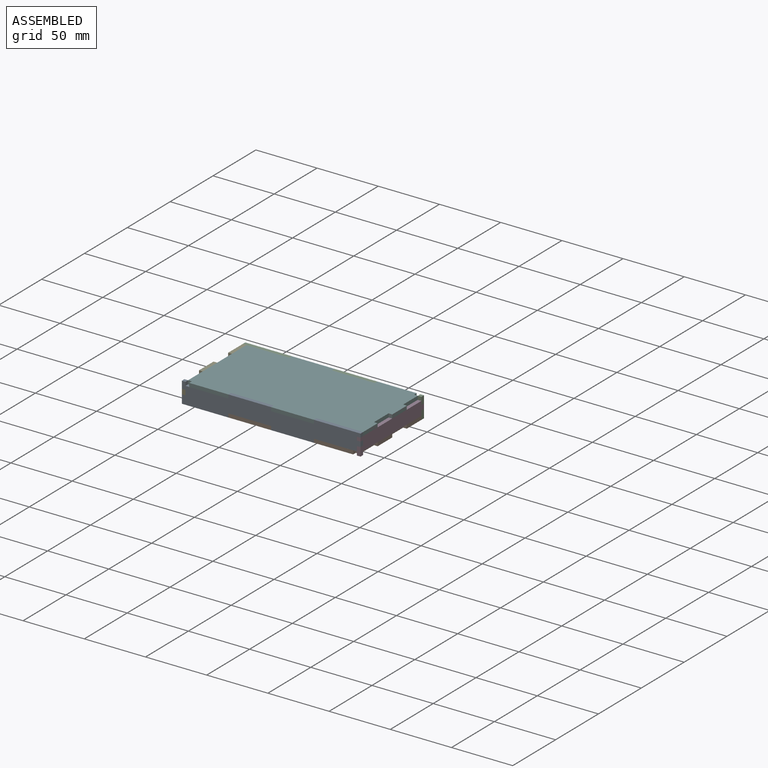
[diagram: assembled view]
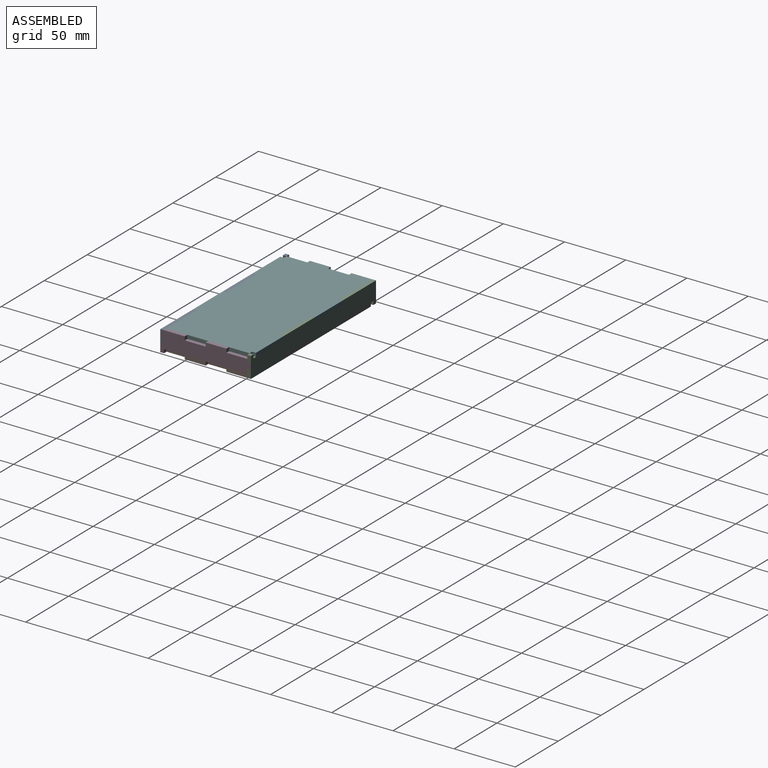
[diagram: assembled view, second angle]
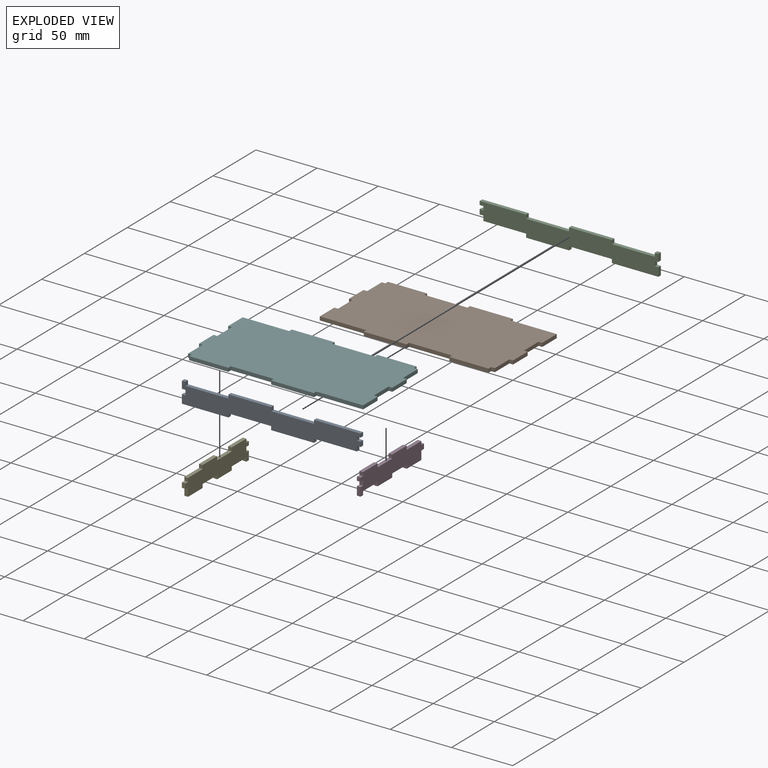
[diagram: exploded view]
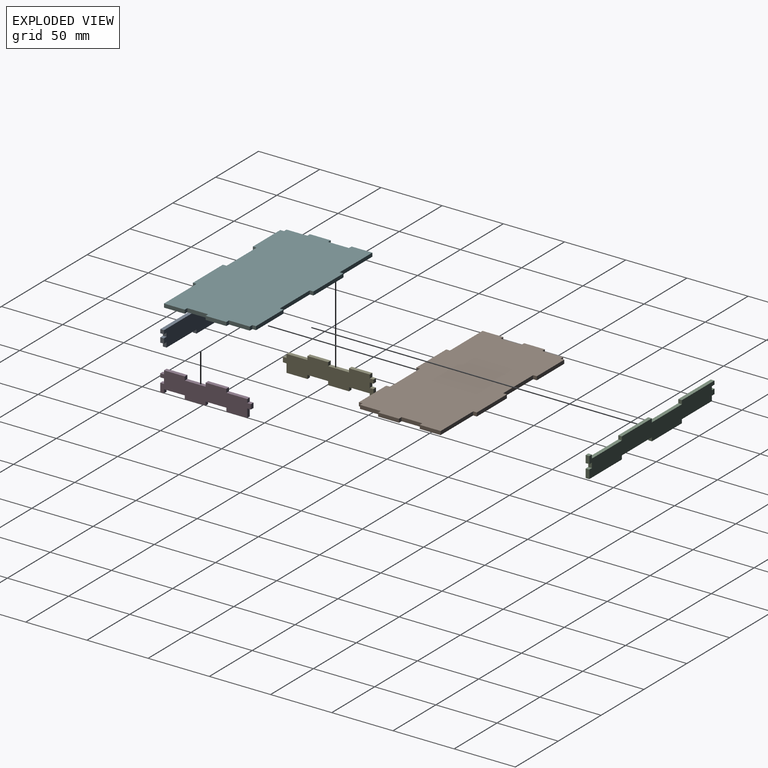
[diagram: exploded view, second angle]
ASSEMBLY  parts=6 mates=5
PART A: 30 faces, bbox 146x3x17 mm
  f0: plane 7x3mm, normal (1,0,0), area 21mm2, adj f1,f27,f28,f29
  f1: plane 38x3mm, normal (0,0,-1), area 114mm2, adj f0,f2,f28,f29
  f2: plane 3x3mm, normal (-1,0,0), area 9mm2, adj f1,f3,f28,f29
  f3: plane 35x3mm, normal (0,0,-1), area 105mm2, adj f2,f4,f28,f29
  f4: plane 3x3mm, normal (1,0,0), area 9mm2, adj f3,f5,f28,f29
  f5: plane 35x3mm, normal (0,0,-1), area 105mm2, adj f4,f6,f28,f29
  f6: plane 3x3mm, normal (-1,0,0), area 9mm2, adj f5,f7,f28,f29
  f7: plane 35x3mm, normal (0,0,-1), area 105mm2, adj f6,f8,f28,f29
  f8: plane 4x3mm, normal (-1,0,0), area 12mm2, adj f7,f9,f28,f29
  f9: plane 3x3mm, normal (0,0,-1), area 9mm2, adj f8,f10,f28,f29
  f10: plane 4x3mm, normal (-1,0,0), area 12mm2, adj f9,f11,f28,f29
  f11: plane 3x3mm, normal (0,0,1), area 9mm2, adj f10,f12,f28,f29
  f12: plane 3x3mm, normal (-1,0,0), area 9mm2, adj f11,f13,f28,f29
  f13: plane 3x3mm, normal (0,0,-1), area 9mm2, adj f12,f14,f28,f29
  f14: plane 3x3mm, normal (-1,0,0), area 9mm2, adj f13,f15,f28,f29
  f15: plane 38x3mm, normal (0,0,1), area 114mm2, adj f14,f16,f28,f29
  f16: plane 3x3mm, normal (1,0,0), area 9mm2, adj f15,f17,f28,f29
  f17: plane 35x3mm, normal (0,0,1), area 105mm2, adj f16,f18,f28,f29
  f18: plane 3x3mm, normal (-1,0,0), area 9mm2, adj f17,f19,f28,f29
  f19: plane 35x3mm, normal (0,0,1), area 105mm2, adj f18,f20,f28,f29
  f20: plane 3x3mm, normal (1,0,0), area 9mm2, adj f19,f21,f28,f29
  f21: plane 35x3mm, normal (0,0,1), area 105mm2, adj f20,f22,f28,f29
  f22: plane 3x3mm, normal (-1,0,0), area 9mm2, adj f21,f23,f28,f29
  f23: plane 3x3mm, normal (0,0,1), area 9mm2, adj f22,f24,f28,f29
  f24: plane 6x3mm, normal (1,0,0), area 18mm2, adj f23,f25,f28,f29
  f25: plane 3x3mm, normal (0,0,-1), area 9mm2, adj f24,f26,f28,f29
  f26: plane 4x3mm, normal (1,0,0), area 12mm2, adj f25,f27,f28,f29
  f27: plane 3x3mm, normal (0,0,1), area 9mm2, adj f0,f26,f28,f29
  f28: plane 146x17mm, normal (0,1,0), area 2020mm2, adj f0,f1,f2,f3,f4,f5,f6,f7
  f29: plane 146x17mm, normal (0,-1,0), area 2020mm2, adj f0,f1,f2,f3,f4,f5,f6,f7
PART B: 34 faces, bbox 146x74x3 mm
  f0: plane 3x3mm, normal (0,1,0), area 9mm2, adj f1,f31,f32,f33
  f1: plane 17x3mm, normal (-1,0,0), area 51mm2, adj f0,f2,f32,f33
  f2: plane 3x3mm, normal (0,-1,0), area 9mm2, adj f1,f3,f32,f33
  f3: plane 17x3mm, normal (-1,0,0), area 51mm2, adj f2,f4,f32,f33
  f4: plane 3x3mm, normal (0,1,0), area 9mm2, adj f3,f5,f32,f33
  f5: plane 17x3mm, normal (-1,0,0), area 51mm2, adj f4,f6,f32,f33
  f6: plane 38x3mm, normal (0,-1,0), area 114mm2, adj f5,f7,f32,f33
  f7: plane 3x3mm, normal (-1,0,0), area 9mm2, adj f6,f8,f32,f33
  f8: plane 35x3mm, normal (0,-1,0), area 105mm2, adj f7,f9,f32,f33
  f9: plane 3x3mm, normal (1,0,0), area 9mm2, adj f8,f10,f32,f33
  f10: plane 35x3mm, normal (0,-1,0), area 105mm2, adj f9,f11,f32,f33
  f11: plane 3x3mm, normal (-1,0,0), area 9mm2, adj f10,f12,f32,f33
  f12: plane 32x3mm, normal (0,-1,0), area 96mm2, adj f11,f13,f32,f33
  f13: plane 3x3mm, normal (1,0,0), area 9mm2, adj f12,f14,f32,f33
  f14: plane 3x3mm, normal (0,-1,0), area 9mm2, adj f13,f15,f32,f33
  f15: plane 17x3mm, normal (1,0,0), area 51mm2, adj f14,f16,f32,f33
  f16: plane 3x3mm, normal (0,-1,0), area 9mm2, adj f15,f17,f32,f33
  f17: plane 17x3mm, normal (1,0,0), area 51mm2, adj f16,f18,f32,f33
  f18: plane 3x3mm, normal (0,1,0), area 9mm2, adj f17,f19,f32,f33
  f19: plane 17x3mm, normal (1,0,0), area 51mm2, adj f18,f20,f32,f33
  f20: plane 3x3mm, normal (0,-1,0), area 9mm2, adj f19,f21,f32,f33
  f21: plane 17x3mm, normal (1,0,0), area 51mm2, adj f20,f22,f32,f33
  f22: plane 38x3mm, normal (0,1,0), area 114mm2, adj f21,f23,f32,f33
  f23: plane 3x3mm, normal (1,0,0), area 9mm2, adj f22,f24,f32,f33
  f24: plane 35x3mm, normal (0,1,0), area 105mm2, adj f23,f25,f32,f33
  f25: plane 3x3mm, normal (-1,0,0), area 9mm2, adj f24,f26,f32,f33
  f26: plane 35x3mm, normal (0,1,0), area 105mm2, adj f25,f27,f32,f33
  f27: plane 3x3mm, normal (1,0,0), area 9mm2, adj f26,f28,f32,f33
  f28: plane 32x3mm, normal (0,1,0), area 96mm2, adj f27,f29,f32,f33
  f29: plane 3x3mm, normal (-1,0,0), area 9mm2, adj f28,f30,f32,f33
  f30: plane 3x3mm, normal (0,1,0), area 9mm2, adj f29,f31,f32,f33
  f31: plane 17x3mm, normal (-1,0,0), area 51mm2, adj f0,f30,f32,f33
  f32: plane 146x74mm, normal (0,0,1), area 10126mm2, adj f0,f1,f2,f3,f4,f5,f6,f7
  f33: plane 146x74mm, normal (0,0,-1), area 10126mm2, adj f0,f1,f2,f3,f4,f5,f6,f7
PART C: same geometry as A
PART D: 30 faces, bbox 3x74x17 mm
  f0: plane 3x3mm, normal (0,1,0), area 9mm2, adj f1,f27,f28,f29
  f1: plane 17x3mm, normal (0,0,-1), area 51mm2, adj f0,f2,f28,f29
  f2: plane 3x3mm, normal (0,-1,0), area 9mm2, adj f1,f3,f28,f29
  f3: plane 17x3mm, normal (0,0,-1), area 51mm2, adj f2,f4,f28,f29
  f4: plane 3x3mm, normal (0,1,0), area 9mm2, adj f3,f5,f28,f29
  f5: plane 17x3mm, normal (0,0,-1), area 51mm2, adj f4,f6,f28,f29
  f6: plane 7x3mm, normal (0,-1,0), area 21mm2, adj f5,f7,f28,f29
  f7: plane 3x3mm, normal (0,0,-1), area 9mm2, adj f6,f8,f28,f29
  f8: plane 4x3mm, normal (0,-1,0), area 12mm2, adj f7,f9,f28,f29
  f9: plane 3x3mm, normal (0,0,1), area 9mm2, adj f8,f10,f28,f29
  f10: plane 3x3mm, normal (0,-1,0), area 9mm2, adj f9,f11,f28,f29
  f11: plane 17x3mm, normal (0,0,1), area 51mm2, adj f10,f12,f28,f29
  f12: plane 3x3mm, normal (0,-1,0), area 9mm2, adj f11,f13,f28,f29
  f13: plane 17x3mm, normal (0,0,1), area 51mm2, adj f12,f14,f28,f29
  f14: plane 3x3mm, normal (0,1,0), area 9mm2, adj f13,f15,f28,f29
  f15: plane 17x3mm, normal (0,0,1), area 51mm2, adj f14,f16,f28,f29
  f16: plane 3x3mm, normal (0,-1,0), area 9mm2, adj f15,f17,f28,f29
  f17: plane 17x3mm, normal (0,0,1), area 51mm2, adj f16,f18,f28,f29
  f18: plane 3x3mm, normal (0,1,0), area 9mm2, adj f17,f19,f28,f29
  f19: plane 3x3mm, normal (0,0,1), area 9mm2, adj f18,f20,f28,f29
  f20: plane 3x3mm, normal (0,1,0), area 9mm2, adj f19,f21,f28,f29
  f21: plane 3x3mm, normal (0,0,-1), area 9mm2, adj f20,f22,f28,f29
  f22: plane 4x3mm, normal (0,1,0), area 12mm2, adj f21,f23,f28,f29
  f23: plane 3x3mm, normal (0,0,1), area 9mm2, adj f22,f24,f28,f29
  f24: plane 7x3mm, normal (0,1,0), area 21mm2, adj f23,f25,f28,f29
  f25: plane 3x3mm, normal (0,0,-1), area 9mm2, adj f24,f26,f28,f29
  f26: plane 3x3mm, normal (0,-1,0), area 9mm2, adj f25,f27,f28,f29
  f27: plane 17x3mm, normal (0,0,-1), area 51mm2, adj f0,f26,f28,f29
  f28: plane 74x17mm, normal (1,0,0), area 994mm2, adj f0,f1,f2,f3,f4,f5,f6,f7
  f29: plane 74x17mm, normal (-1,0,0), area 994mm2, adj f0,f1,f2,f3,f4,f5,f6,f7
PART E: same geometry as D
PART F: same geometry as B
PLACE A rot(axis=(0,0,-1),180deg) t=(0.97,3.67,-8.16)mm
PLACE B t=(0.97,3.67,-8.16)mm
PLACE C t=(0.97,3.67,-8.16)mm
PLACE D rot(axis=(0,0,-1),180deg) t=(0.97,3.67,-8.16)mm
PLACE E t=(0.97,3.67,-8.16)mm
PLACE F rot(axis=(1,0,0),180deg) t=(0.97,3.67,8.84)mm
MATE fastened F.f32 <-> E.f15  axis (0,0,-1) through (-72.03,12.17,5.84)mm
MATE fastened A.f29 <-> F.f26  axis (0,1,0) through (-16.53,-30.33,8.84)mm
MATE fastened B.f30 <-> E.f26  axis (0,1,0) through (-72.03,37.67,-6.66)mm
MATE fastened B.f14 <-> D.f26  axis (0,-1,0) through (73.97,-30.33,-6.66)mm
MATE fastened C.f29 <-> F.f10  axis (0,-1,0) through (18.47,37.67,8.84)mm
